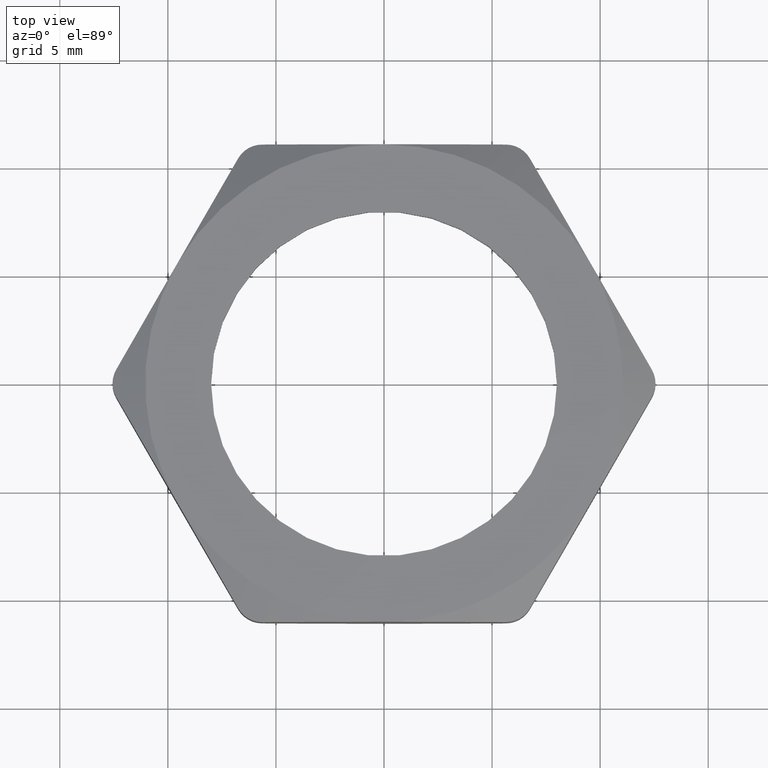
[diagram: clean part render]
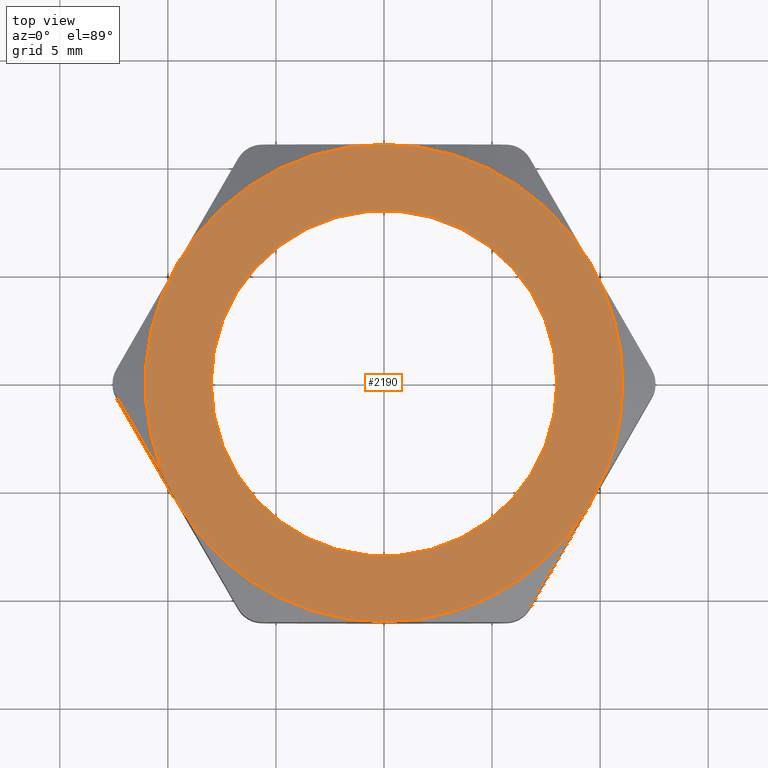
[diagram: same view with one face highlighted and labeled with its STEP entity id]
A machine part, top view. The second image highlights one B-rep face of the part: STEP entity #2190.
In plain terms, the highlighted planar face has unit normal (0, 0, -1).
Its self-contained STEP definition (entity closure, byte-faithful):
#123 = CARTESIAN_POINT ( 'NONE',  ( -0.3767210506462309600, -0.2175000000000000000, 0.2000000000000000100 ) ) ;
#149 = CARTESIAN_POINT ( 'NONE',  ( 5.914624404477000200E-017, -0.4349999999999998900, 0.2000000000000000100 ) ) ;
#274 = CARTESIAN_POINT ( 'NONE',  ( -0.3767210506462309000, 0.2175000000000001100, 0.2000000000000000100 ) ) ;
#793 = DIRECTION ( 'NONE',  ( 1.000000000000000000, 0.0000000000000000000, 0.0000000000000000000 ) ) ;
#794 = DIRECTION ( 'NONE',  ( 0.0000000000000000000, 0.0000000000000000000, 1.000000000000000000 ) ) ;
#795 = CARTESIAN_POINT ( 'NONE',  ( 0.0000000000000000000, 0.0000000000000000000, 0.2000000000000000100 ) ) ;
#796 = AXIS2_PLACEMENT_3D ( 'NONE', #795, #794, #793 ) ;
#797 = CIRCLE ( 'NONE', #796, 0.4350000000000000500 ) ;
#911 = CARTESIAN_POINT ( 'NONE',  ( 0.4350000000000000500, 0.0000000000000000000, 0.2000000000000000100 ) ) ;
#930 = CARTESIAN_POINT ( 'NONE',  ( 0.3767210506462311300, 0.2175000000000000300, 0.2000000000000000100 ) ) ;
#1038 = DIRECTION ( 'NONE',  ( 1.000000000000000000, 0.0000000000000000000, 0.0000000000000000000 ) ) ;
#1039 = DIRECTION ( 'NONE',  ( 0.0000000000000000000, 0.0000000000000000000, 1.000000000000000000 ) ) ;
#1040 = CARTESIAN_POINT ( 'NONE',  ( 0.0000000000000000000, 0.0000000000000000000, 0.2000000000000000100 ) ) ;
#1041 = AXIS2_PLACEMENT_3D ( 'NONE', #1040, #1039, #1038 ) ;
#1042 = CIRCLE ( 'NONE', #1041, 0.3150000000000000000 ) ;
#1103 = CARTESIAN_POINT ( 'NONE',  ( 0.3150000000000000000, 3.980102097228897700E-017, 0.2000000000000000100 ) ) ;
#1104 = CARTESIAN_POINT ( 'NONE',  ( -0.3150000000000000000, 0.0000000000000000000, 0.2000000000000000100 ) ) ;
#1152 = DIRECTION ( 'NONE',  ( 1.000000000000000000, 0.0000000000000000000, 0.0000000000000000000 ) ) ;
#1153 = DIRECTION ( 'NONE',  ( 0.0000000000000000000, 0.0000000000000000000, 1.000000000000000000 ) ) ;
#1154 = CARTESIAN_POINT ( 'NONE',  ( 0.0000000000000000000, 0.0000000000000000000, 0.2000000000000000100 ) ) ;
#1155 = AXIS2_PLACEMENT_3D ( 'NONE', #1154, #1153, #1152 ) ;
#1160 = CIRCLE ( 'NONE', #1155, 0.4350000000000000500 ) ;
#1163 = DIRECTION ( 'NONE',  ( 1.000000000000000000, 0.0000000000000000000, 0.0000000000000000000 ) ) ;
#1164 = DIRECTION ( 'NONE',  ( 0.0000000000000000000, 0.0000000000000000000, 1.000000000000000000 ) ) ;
#1165 = AXIS2_PLACEMENT_3D ( 'NONE', #1171, #1164, #1163 ) ;
#1166 = CIRCLE ( 'NONE', #1165, 0.4350000000000000500 ) ;
#1171 = CARTESIAN_POINT ( 'NONE',  ( 0.0000000000000000000, 0.0000000000000000000, 0.2000000000000000100 ) ) ;
#1174 = DIRECTION ( 'NONE',  ( 1.000000000000000000, 0.0000000000000000000, 0.0000000000000000000 ) ) ;
#1175 = DIRECTION ( 'NONE',  ( 0.0000000000000000000, 0.0000000000000000000, 1.000000000000000000 ) ) ;
#1176 = CARTESIAN_POINT ( 'NONE',  ( 0.0000000000000000000, 0.0000000000000000000, 0.2000000000000000100 ) ) ;
#1177 = AXIS2_PLACEMENT_3D ( 'NONE', #1176, #1175, #1174 ) ;
#1178 = CIRCLE ( 'NONE', #1177, 0.4350000000000000500 ) ;
#1206 = CARTESIAN_POINT ( 'NONE',  ( 0.0000000000000000000, 0.0000000000000000000, 0.2000000000000000100 ) ) ;
#1207 = AXIS2_PLACEMENT_3D ( 'NONE', #1206, #1272, #1271 ) ;
#1208 = CIRCLE ( 'NONE', #1207, 0.4350000000000000500 ) ;
#1209 = DIRECTION ( 'NONE',  ( 1.000000000000000000, 0.0000000000000000000, 0.0000000000000000000 ) ) ;
#1210 = DIRECTION ( 'NONE',  ( 0.0000000000000000000, 0.0000000000000000000, 1.000000000000000000 ) ) ;
#1211 = CARTESIAN_POINT ( 'NONE',  ( 0.0000000000000000000, 0.0000000000000000000, 0.2000000000000000100 ) ) ;
#1212 = AXIS2_PLACEMENT_3D ( 'NONE', #1211, #1210, #1209 ) ;
#1213 = CIRCLE ( 'NONE', #1212, 0.4350000000000000500 ) ;
#1271 = DIRECTION ( 'NONE',  ( 1.000000000000000000, 0.0000000000000000000, 0.0000000000000000000 ) ) ;
#1272 = DIRECTION ( 'NONE',  ( 0.0000000000000000000, 0.0000000000000000000, 1.000000000000000000 ) ) ;
#1297 = CARTESIAN_POINT ( 'NONE',  ( 0.3767210506462306800, -0.2174999999999999700, 0.2000000000000000100 ) ) ;
#1322 = CARTESIAN_POINT ( 'NONE',  ( -5.914624404477002600E-017, 0.4350000000000000500, 0.2000000000000000100 ) ) ;
#1339 = DIRECTION ( 'NONE',  ( 1.000000000000000000, 0.0000000000000000000, 0.0000000000000000000 ) ) ;
#1340 = DIRECTION ( 'NONE',  ( 0.0000000000000000000, 0.0000000000000000000, 1.000000000000000000 ) ) ;
#1341 = CARTESIAN_POINT ( 'NONE',  ( 0.0000000000000000000, 0.0000000000000000000, 0.2000000000000000100 ) ) ;
#1342 = AXIS2_PLACEMENT_3D ( 'NONE', #1341, #1340, #1339 ) ;
#1350 = CIRCLE ( 'NONE', #1342, 0.4350000000000000500 ) ;
#1362 = DIRECTION ( 'NONE',  ( 1.000000000000000000, 0.0000000000000000000, 0.0000000000000000000 ) ) ;
#1363 = DIRECTION ( 'NONE',  ( 0.0000000000000000000, 0.0000000000000000000, 1.000000000000000000 ) ) ;
#1364 = AXIS2_PLACEMENT_3D ( 'NONE', #1372, #1363, #1362 ) ;
#1365 = CIRCLE ( 'NONE', #1364, 0.3150000000000000000 ) ;
#1372 = CARTESIAN_POINT ( 'NONE',  ( 0.0000000000000000000, 0.0000000000000000000, 0.2000000000000000100 ) ) ;
#1391 = DIRECTION ( 'NONE',  ( -1.000000000000000000, 0.0000000000000000000, 0.0000000000000000000 ) ) ;
#1392 = DIRECTION ( 'NONE',  ( 0.0000000000000000000, 0.0000000000000000000, -1.000000000000000000 ) ) ;
#1393 = CARTESIAN_POINT ( 'NONE',  ( 0.0000000000000000000, 0.8700000000000005500, 0.2000000000000000100 ) ) ;
#1394 = AXIS2_PLACEMENT_3D ( 'NONE', #1393, #1392, #1391 ) ;
#1403 = PLANE ( 'NONE',  #1394 ) ;
#1405 = FACE_OUTER_BOUND ( 'NONE', #2077, .T. ) ;
#1406 = FACE_BOUND ( 'NONE', #2153, .T. ) ;
#1533 = VERTEX_POINT ( 'NONE', #123 ) ;
#1548 = VERTEX_POINT ( 'NONE', #149 ) ;
#1596 = VERTEX_POINT ( 'NONE', #274 ) ;
#1853 = EDGE_CURVE ( 'NONE', #1913, #1901, #797, .T. ) ;
#1901 = VERTEX_POINT ( 'NONE', #930 ) ;
#1913 = VERTEX_POINT ( 'NONE', #911 ) ;
#1981 = EDGE_CURVE ( 'NONE', #2010, #2011, #1042, .T. ) ;
#2010 = VERTEX_POINT ( 'NONE', #1104 ) ;
#2011 = VERTEX_POINT ( 'NONE', #1103 ) ;
#2054 = EDGE_CURVE ( 'NONE', #1548, #2108, #1178, .T. ) ;
#2057 = EDGE_CURVE ( 'NONE', #1901, #2170, #1166, .T. ) ;
#2061 = ORIENTED_EDGE ( 'NONE', *, *, #2162, .T. ) ;
#2064 = EDGE_CURVE ( 'NONE', #1533, #1548, #1160, .T. ) ;
#2077 = EDGE_LOOP ( 'NONE', ( #2078, #2094, #2089, #2087, #2061, #2161, #2160 ) ) ;
#2078 = ORIENTED_EDGE ( 'NONE', *, *, #2090, .T. ) ;
#2087 = ORIENTED_EDGE ( 'NONE', *, *, #2054, .T. ) ;
#2088 = EDGE_CURVE ( 'NONE', #1596, #1533, #1213, .T. ) ;
#2089 = ORIENTED_EDGE ( 'NONE', *, *, #2064, .T. ) ;
#2090 = EDGE_CURVE ( 'NONE', #2170, #1596, #1208, .T. ) ;
#2094 = ORIENTED_EDGE ( 'NONE', *, *, #2088, .T. ) ;
#2108 = VERTEX_POINT ( 'NONE', #1297 ) ;
#2141 = ORIENTED_EDGE ( 'NONE', *, *, #2181, .F. ) ;
#2142 = ORIENTED_EDGE ( 'NONE', *, *, #1981, .F. ) ;
#2153 = EDGE_LOOP ( 'NONE', ( #2142, #2141 ) ) ;
#2160 = ORIENTED_EDGE ( 'NONE', *, *, #2057, .T. ) ;
#2161 = ORIENTED_EDGE ( 'NONE', *, *, #1853, .T. ) ;
#2162 = EDGE_CURVE ( 'NONE', #2108, #1913, #1350, .T. ) ;
#2170 = VERTEX_POINT ( 'NONE', #1322 ) ;
#2181 = EDGE_CURVE ( 'NONE', #2011, #2010, #1365, .T. ) ;
#2190 = ADVANCED_FACE ( 'NONE', ( #1406, #1405 ), #1403, .F. ) ;